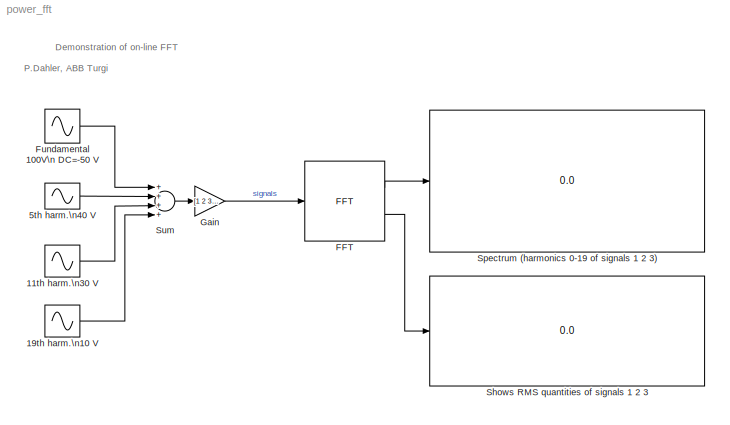
MODEL power_fft
KIND model
BLOCK [Sin] 11th harm.\n30 V 
  Amplitude = 30
  Frequency = 11*50*2*pi
  Ports = [0, 1]
  SampleTime = 0
  SineType = Time based
BLOCK [Sin] 19th harm.\n10 V 
  Amplitude = 10
  Frequency = 19*50*2*pi
  Ports = [0, 1]
  SampleTime = 0
  SineType = Time based
BLOCK [Sin] 5th harm.\n40 V 
  Amplitude = 40
  Frequency = 5*50*2*pi
  Ports = [0, 1]
  SampleTime = 0
  SineType = Time based
BLOCK [Reference] FFT  REF=powerlib_extras/Discrete\nMeasurements/FFT
  Nsig = 3
  Ports = [1, 2]
  SourceBlock = powerlib_extras/Discrete\nMeasurements/FFT
  SourceType = Fast Fourier Transform
  Ts = 500e-6
  TsFFT = 0.1
  base = [1 1  1   ]
  f1 = 50
  figure_N = 2
  mask = [1 -1  1  ]
  nDec = 0
BLOCK [Sin] Fundamental 100V\n DC=-50 V
  Amplitude = 100
  Bias = -50
  Frequency = 50*2*pi
  Phase = pi/2
  Ports = [0, 1]
  SampleTime = 0
  SineType = Time based
BLOCK [Gain] Gain
  Gain = [1 2  3 ]
BLOCK [Display] Shows RMS quantities of signals 1 2 3
  Decimation = 1
  Format = bank
  Ports = [1]
BLOCK [Display] Spectrum (harmonics 0-19 of signals 1 2 3)
  Decimation = 1
  Format = bank
  Ports = [1]
BLOCK [Sum] Sum
  Inputs = ++++
  Ports = [4, 1]
ANNOTATION (root): Demonstration of on-line FFT
ANNOTATION (root): P.Dahler, ABB Turgi
LINE 11th harm.\n30 V :1 -> Sum:3
LINE 19th harm.\n10 V :1 -> Sum:4
LINE 5th harm.\n40 V :1 -> Sum:2
LINE FFT:1 -> Spectrum (harmonics 0-19 of signals 1 2 3):1
LINE FFT:2 -> Shows RMS quantities of signals 1 2 3:1
LINE Fundamental 100V\n DC=-50 V:1 -> Sum:1
LINE Gain:1 -> FFT:1
LINE Sum:1 -> Gain:1
